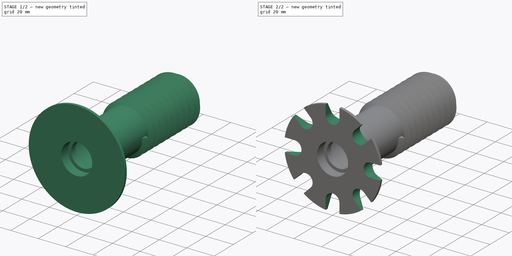
[diagram: build sequence overview — one tinted view per stage of 2, left to right]
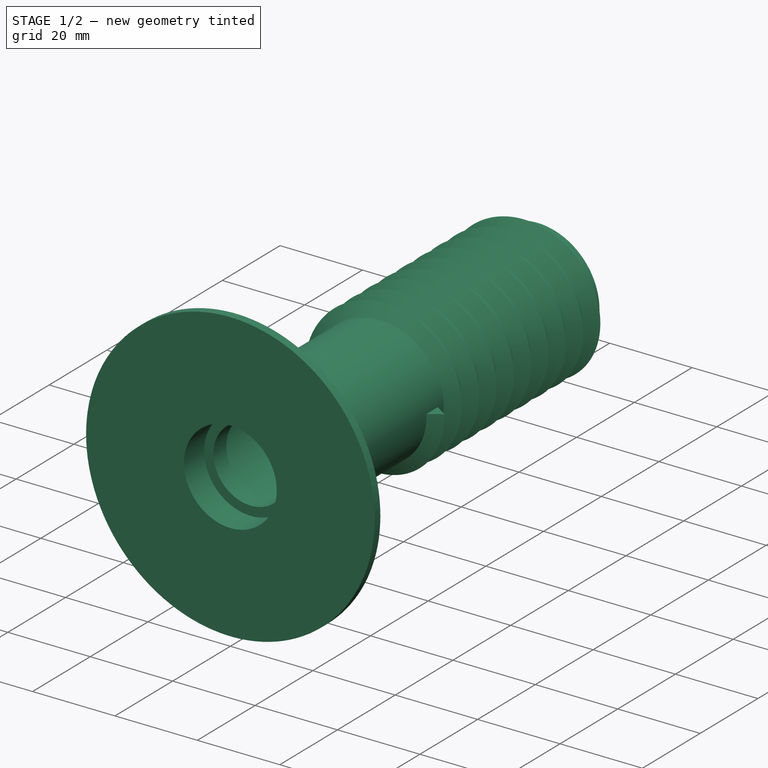
[diagram: stage 1 of 2 — iso view after this stage's code; geometry added in this stage tinted green]
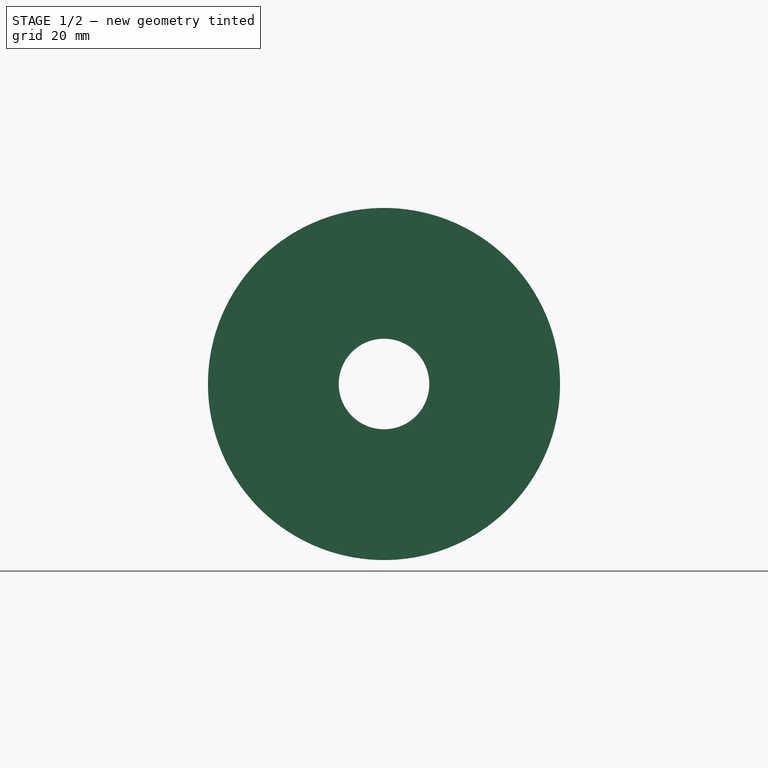
[diagram: stage 1 of 2 — front view after this stage's code; geometry added in this stage tinted green]
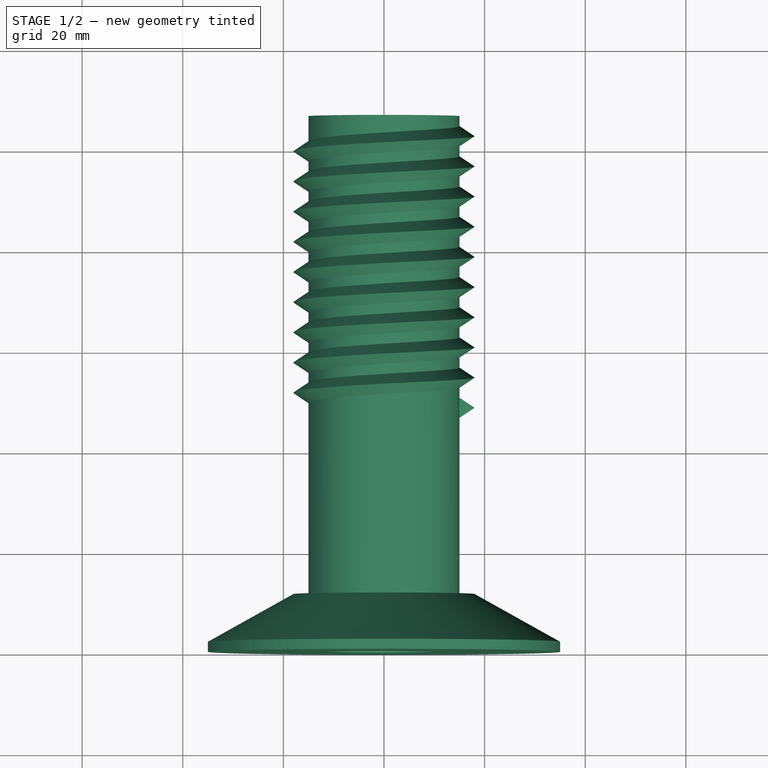
[diagram: stage 1 of 2 — top view after this stage's code; geometry added in this stage tinted green]
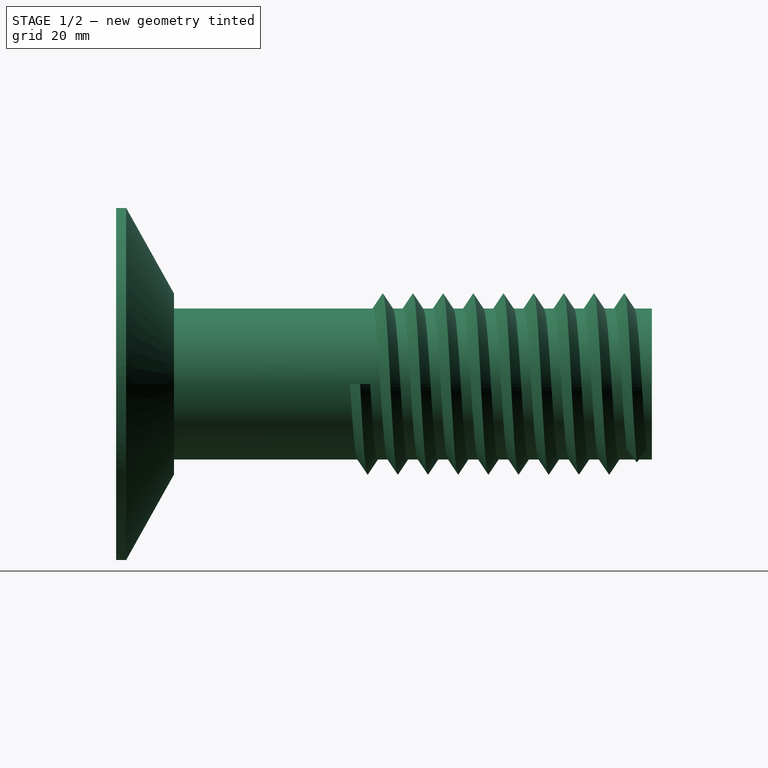
[diagram: stage 1 of 2 — right view after this stage's code; geometry added in this stage tinted green]
FCSTD DOCUMENT  (FreeCAD 0.20R27319 (Git))
Label: Filament Holder Spindle
License: All rights reserved
LicenseURL: http://en.wikipedia.org/wiki/All_rights_reserved
objects: Sketcher::SketchObject×3, PartDesign::Revolution×1, PartDesign::AdditiveHelix×1, PartDesign::Pocket×1, PartDesign::PolarPattern×1, PartDesign::Body×1
note: 11 computed .brp shape members not serialized (recipe doc carries the construction recipe); baked Part::Feature solids carry a one-line shape summary decoded from their .brp

FEATURE [Sketcher::SketchObject] Sketch  label="Body Profile"
  FullyConstrained = false
  MapMode = 5
  Support = -> [XY_Plane]
  sketch-geometry (15):
    g0: LineSegment StartX=11.25 StartY=7 StartZ=0 EndX=11.25 EndY=0 EndZ=0
    g1: LineSegment StartX=11.25 StartY=0 StartZ=0 EndX=35 EndY=0 EndZ=0
    g2: LineSegment StartX=11.25 StartY=7 StartZ=0 EndX=9 EndY=7 EndZ=0
    g3: LineSegment StartX=9 StartY=7 StartZ=0 EndX=9 EndY=11.5 EndZ=0
    g4: LineSegment StartX=9 StartY=11.5 StartZ=0 EndX=14 EndY=11.5 EndZ=0
    g5: LineSegment StartX=15 StartY=11.5 StartZ=0 EndX=15 EndY=106.5 EndZ=0
    g6: LineSegment StartX=14 StartY=11.5 StartZ=0 EndX=14 EndY=79.5 EndZ=0
    g7: LineSegment StartX=15 StartY=11.5 StartZ=0 EndX=18 EndY=11.5 EndZ=0
    g8: LineSegment StartX=14 StartY=79.5 StartZ=0 EndX=9 EndY=84.5 EndZ=0
    g9: LineSegment StartX=9 StartY=84.5 StartZ=0 EndX=9 EndY=88.3967 EndZ=0
    g10: LineSegment StartX=9 StartY=88.3967 StartZ=0 EndX=11.25 EndY=88.3967 EndZ=0
    g11: LineSegment StartX=11.25 StartY=88.3967 StartZ=0 EndX=11.25 EndY=106.5 EndZ=0
    g12: LineSegment StartX=11.25 StartY=106.5 StartZ=0 EndX=15 EndY=106.5 EndZ=0
    g13: LineSegment StartX=35 StartY=0 StartZ=0 EndX=35 EndY=2 EndZ=0
    g14: LineSegment StartX=18 StartY=11.5 StartZ=0 EndX=35 EndY=2 EndZ=0
  constraints (44):
    c: Vertical(g0)
    c: Coincident(g1,g0)
    c: Horizontal(g1)
    c: DistanceX(g-1,g0) = 11.25
    c: DistanceY(g0,g0) = 7
    c: Coincident(g0,g2)
    c: Horizontal(g2)
    c: Coincident(g2,g3)
    c: Vertical(g3)
    c: Coincident(g3,g4)
    c: Horizontal(g4)
    c: DistanceX(g-1,g1) = 35
    c: DistanceX(g-1,g3) = 9
    c: DistanceX(g-1,g7) = 18
    c: DistanceY(g0,g3) = 11.5
    c: PointOnObject(g0,g-1)
    c: Vertical(g5)
    c: Vertical(g6)
    c: Coincident(g4,g6)
    c: Coincident(g7,g5)
    c: DistanceX(g6,g5) = 1
    c: DistanceX(g-1,g5) = 15
    c: Distance(g5) = 95
    c: Horizontal(g7)
    c: Horizontal(g5,g4)
    c: Coincident(g6,g8)
    c: Coincident(g8,g9)
    c: Vertical(g9)
    c: Coincident(g9,g10)
    c: Coincident(g10,g11)
    c: Vertical(g11)
    c: Coincident(g11,g12)
    c: Coincident(g12,g5)
    c: Horizontal(g12)
    c: Vertical(g8,g3)
    c: Vertical(g0,g10)
    c: Horizontal(g10)
    c: DistanceY(g7,g6) = 68
    c: Angle(g8,g6) = 2.35619
    c: Coincident(g13,g1)
    c: Vertical(g13)
    c: Coincident(g14,g7)
    c: Coincident(g14,g13)
    c: Distance(g13) = 2
FEATURE [PartDesign::Revolution] Revolution  label="Main Body"
  Angle = 360
  Axis = (0,1,0)
  Base = (0,0,0)
  Profile = -> Sketch
  ReferenceAxis = -> Sketch [V_Axis]
  Reversed = true
FEATURE [Sketcher::SketchObject] Sketch002  label="Thread Profile"
  AttachmentOffset = pos=(0,-10,0) rot=(0,0,1;0rad)
  ExternalGeometry = -> [Sketch]
  FullyConstrained = true
  MapMode = 5
  Placement = pos=(0,-10,0) rot=(0,0,1;0rad)
  Support = -> [XY_Plane]
  sketch-geometry (3):
    g0: LineSegment StartX=15 StartY=56.5 StartZ=0 EndX=18 EndY=58.5 EndZ=0
    g1: LineSegment StartX=18 StartY=58.5 StartZ=0 EndX=15 EndY=60.5 EndZ=0
    g2: LineSegment StartX=15 StartY=60.5 StartZ=0 EndX=15 EndY=56.5 EndZ=0
  constraints (9):
    c: Coincident(g1,g2)
    c: Coincident(g2,g0)
    c: Vertical(g2)
    c: Distance(g2) = 4
    c: Coincident(g0,g1)
    c: Equal(g0,g1)
    c: DistanceX(g0,g0) = 3
    c: DistanceY(g0,g-3) = 60
    c: Vertical(g0,g-3)
FEATURE [PartDesign::AdditiveHelix] AdditiveHelix  label="Thread"
  Angle = 0
  Axis = (0,1,0)
  Base = (0,-10,0)
  BaseFeature = -> Revolution
  Growth = 0
  HasBeenEdited = false
  Height = 55
  LeftHanded = false
  Mode = 0
  Outside = false
  Pitch = 6
  Profile = -> Sketch002
  ReferenceAxis = -> Sketch002 [V_Axis]
  Turns = 9.16667
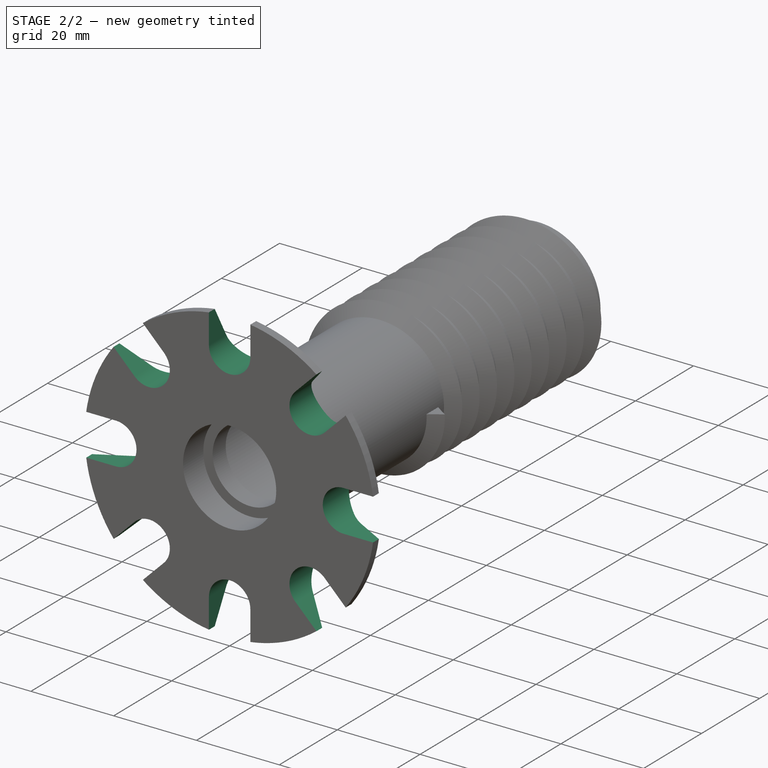
[diagram: stage 2 of 2 — iso view after this stage's code; geometry added in this stage tinted green]
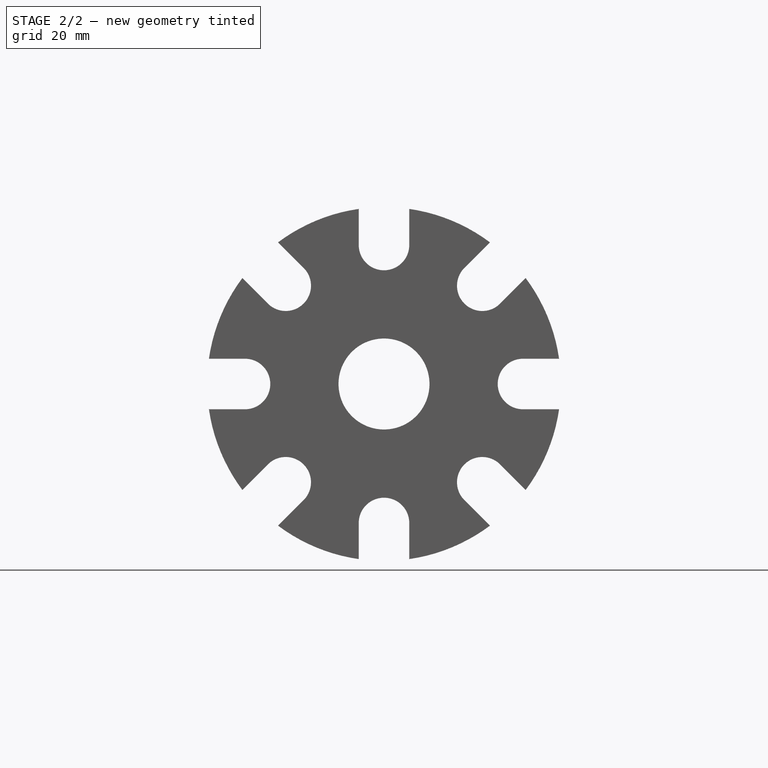
[diagram: stage 2 of 2 — front view after this stage's code; geometry added in this stage tinted green]
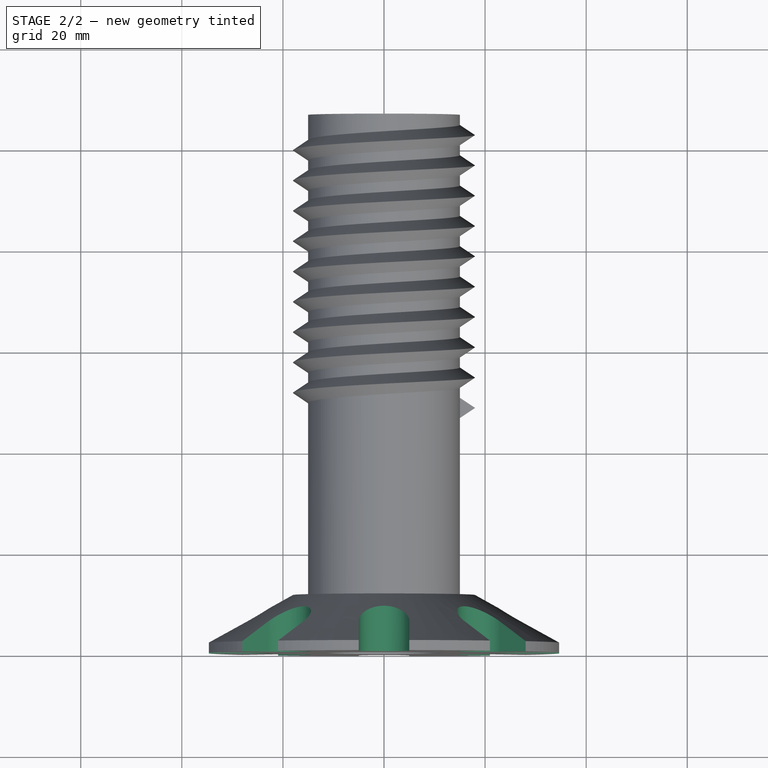
[diagram: stage 2 of 2 — top view after this stage's code; geometry added in this stage tinted green]
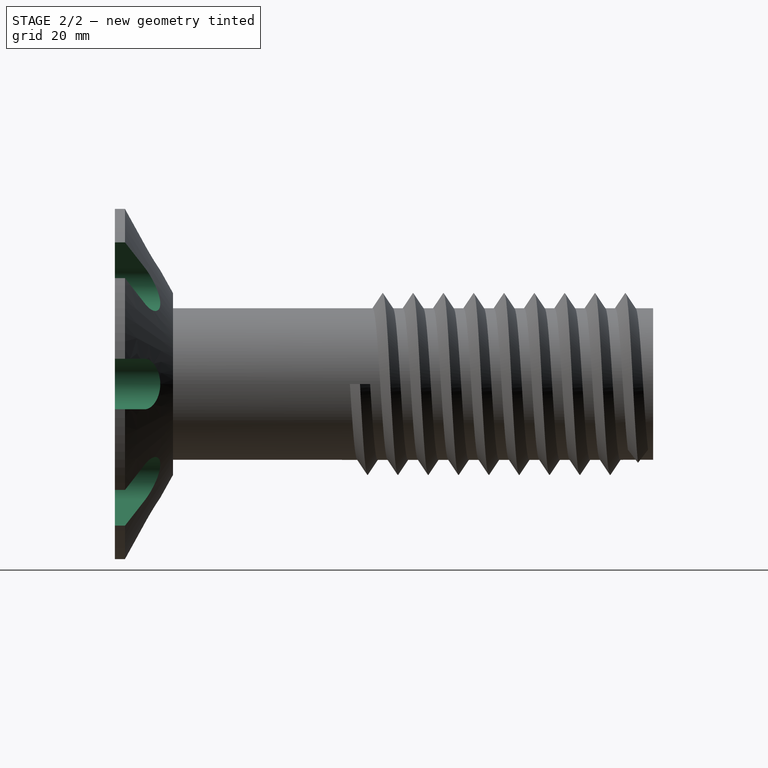
[diagram: stage 2 of 2 — right view after this stage's code; geometry added in this stage tinted green]
FEATURE [Sketcher::SketchObject] Sketch003
  ExternalGeometry = -> [AdditiveHelix]
  FullyConstrained = false
  MapMode = 5
  Placement = pos=(0,0,0) rot=(1,0,0;1.5708rad)
  Support = -> [AdditiveHelix]
  sketch-geometry (5):
    g0: LineSegment StartX=-5 StartY=39.3395 StartZ=0 EndX=-5 EndY=27.5 EndZ=0
    g1: ArcOfCircle CenterX=0 CenterY=27.5 CenterZ=0 NormalX=0 NormalY=0 NormalZ=1 AngleXU=0 Radius=5 StartAngle=3.14159 EndAngle=6.28319
    g2: LineSegment StartX=5 StartY=27.5 StartZ=0 EndX=5 EndY=39.3395 EndZ=0
    g3: LineSegment StartX=5 StartY=39.3395 StartZ=0 EndX=-5 EndY=39.3395 EndZ=0
    g4: GeomPoint X=0 Y=35 Z=0
  constraints (12):
    c: Vertical(g0)
    c: Tangent(g0,g1) = -1.5708
    c: Tangent(g1,g2) = -1.5708
    c: Coincident(g2,g3)
    c: Coincident(g3,g0)
    c: Horizontal(g3)
    c: Vertical(g2)
    c: PointOnObject(g1,g-2)
    c: Diameter(g1) = 10
    c: PointOnObject(g4,g-3)
    c: PointOnObject(g4,g-2)
    c: DistanceY(g1,g4) = 7.5
FEATURE [PartDesign::Pocket] Pocket
  BaseFeature = -> AdditiveHelix
  Direction = (0,1,-2e-16)
  Length = 20
  Length2 = 5
  Profile = -> Sketch003
  ReferenceAxis = -> Sketch003 [N_Axis]
  Type = 0
FEATURE [PartDesign::PolarPattern] PolarPattern
  Angle = 360
  Axis = -> Sketch003 [N_Axis]
  BaseFeature = -> Pocket
  Occurrences = 8
  Originals = -> [Pocket]
  Overlap = 0
FEATURE [PartDesign::Body] Body  label="Main Body with thread"
  Group = -> [Sketch,Revolution,Sketch003,Sketch002,AdditiveHelix,Pocket,PolarPattern]
  Origin = -> Origin
  Tip = -> PolarPattern
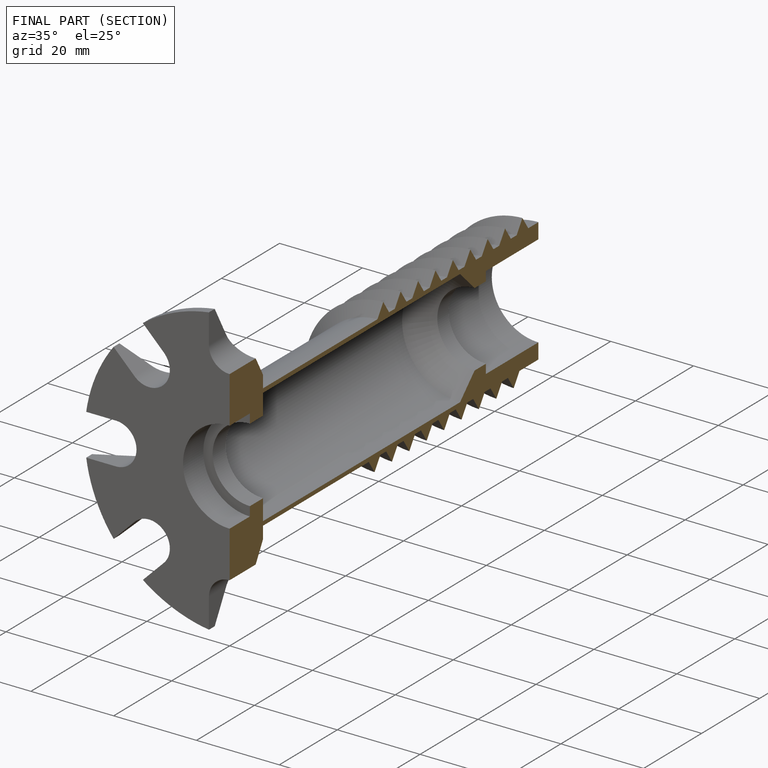
[diagram: finished part — half-section view (interior)]
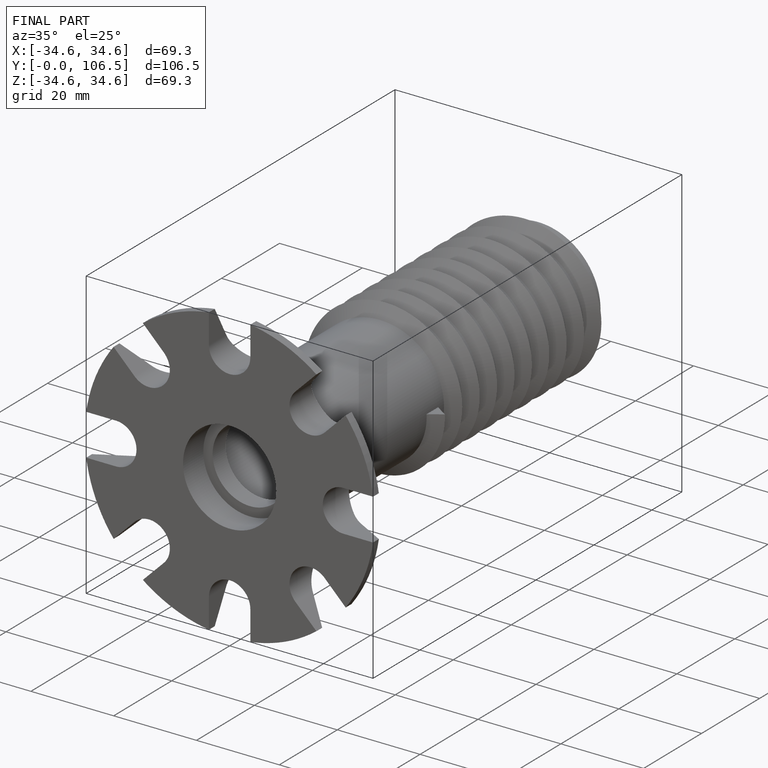
[diagram: finished part — iso view with bounding-box wireframe]
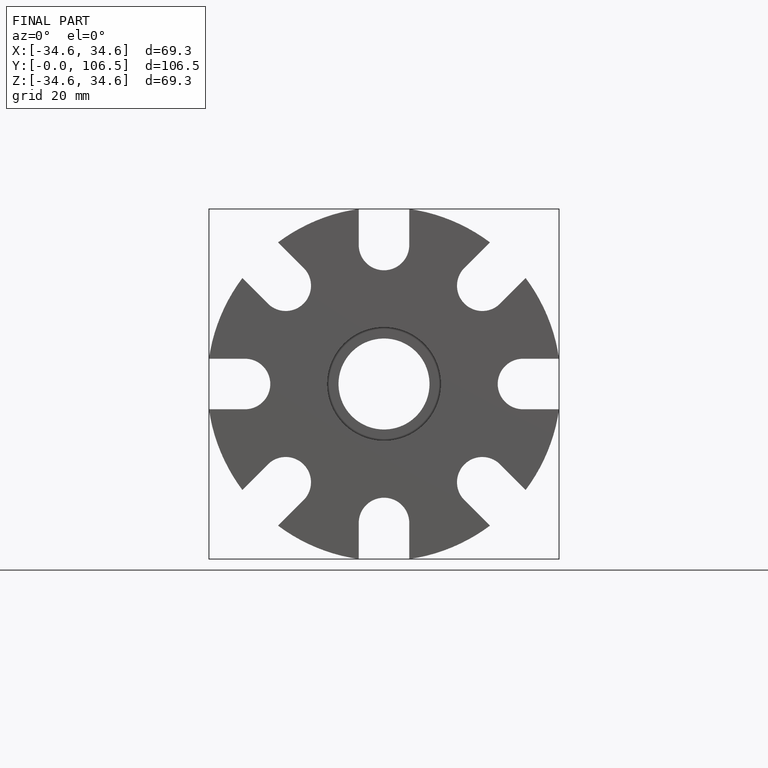
[diagram: finished part — front view with bounding-box wireframe]
